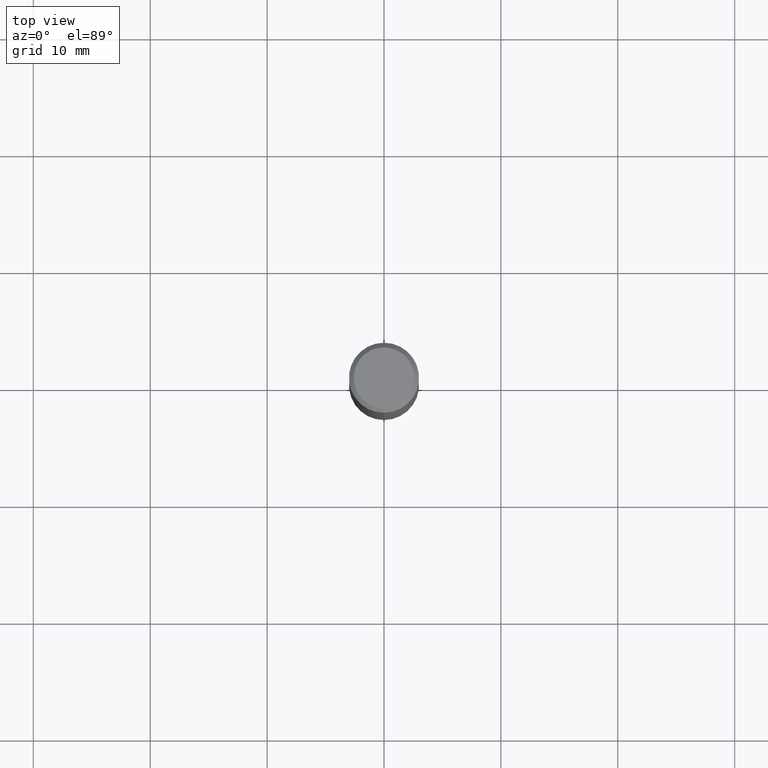
[diagram: clean part render]
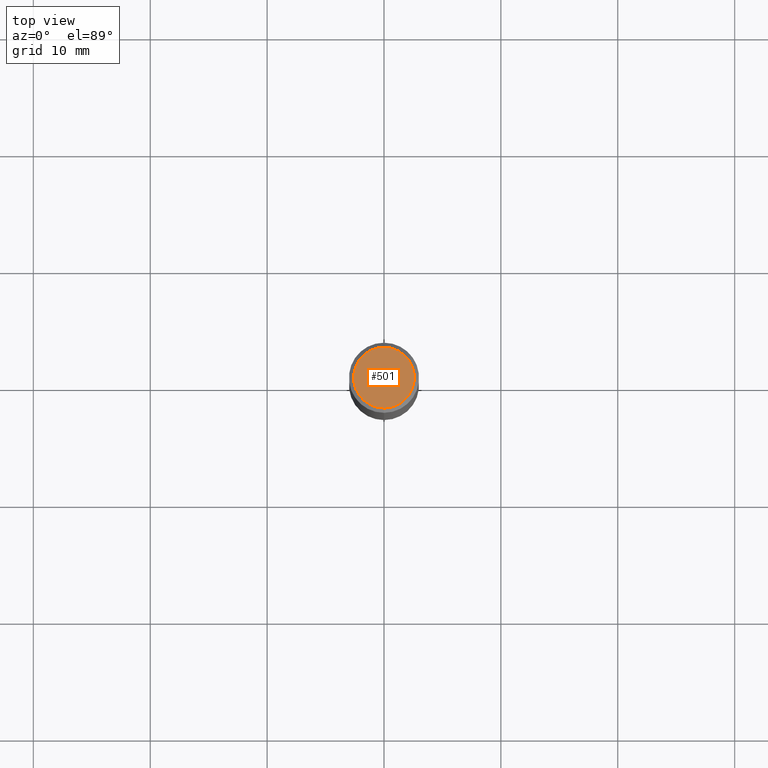
[diagram: same view with one face highlighted and labeled with its STEP entity id]
A machine part, top view. The second image highlights one B-rep face of the part: STEP entity #501.
In plain terms, the highlighted planar face has unit normal (-0, 0, 1).
Its self-contained STEP definition (entity closure, byte-faithful):
#305=VERTEX_POINT('',#814);
#501=ADVANCED_FACE('',(#1031),#1032,.T.);
#575=VERTEX_POINT('',#1116);
#715=EDGE_CURVE('',#305,#575,#1264,.T.);
#745=EDGE_CURVE('',#575,#305,#1296,.T.);
#814=CARTESIAN_POINT('',(0.0,2.6,0.0));
#1031=FACE_OUTER_BOUND('',#3017,.T.);
#1032=PLANE('',#3018);
#1116=CARTESIAN_POINT('',(3.18397651993818E-016,-2.6,0.0));
#1264=CIRCLE('',#4789,2.6);
#1296=CIRCLE('',#4966,2.6);
#3017=EDGE_LOOP('',(#5518,#5519));
#3018=AXIS2_PLACEMENT_3D('',#5520,#5521,#5522);
#4789=AXIS2_PLACEMENT_3D('',#5767,#5768,#5769);
#4966=AXIS2_PLACEMENT_3D('',#5793,#5794,#5795);
#5518=ORIENTED_EDGE('',*,*,#715,.F.);
#5519=ORIENTED_EDGE('',*,*,#745,.F.);
#5520=CARTESIAN_POINT('',(0.0,1.3,0.0));
#5521=DIRECTION('',(-0.0,0.0,1.0));
#5522=DIRECTION('',(0.0,-1.0,0.0));
#5767=CARTESIAN_POINT('',(0.0,0.0,0.0));
#5768=DIRECTION('',(0.0,0.0,-1.0));
#5769=DIRECTION('',(0.0,1.0,0.0));
#5793=CARTESIAN_POINT('',(0.0,0.0,0.0));
#5794=DIRECTION('',(0.0,0.0,-1.0));
#5795=DIRECTION('',(0.0,1.0,0.0));